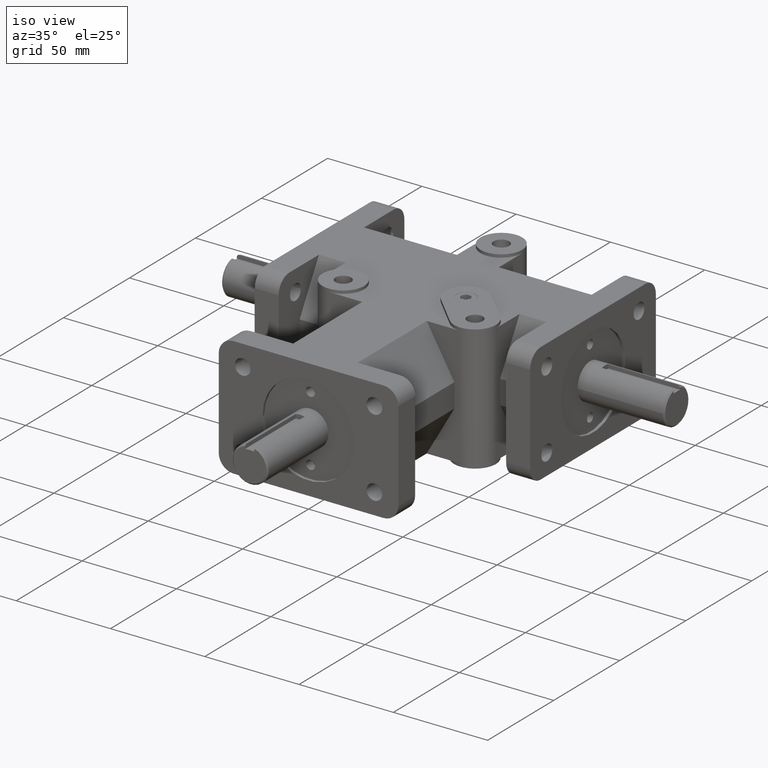
[diagram: clean part render]
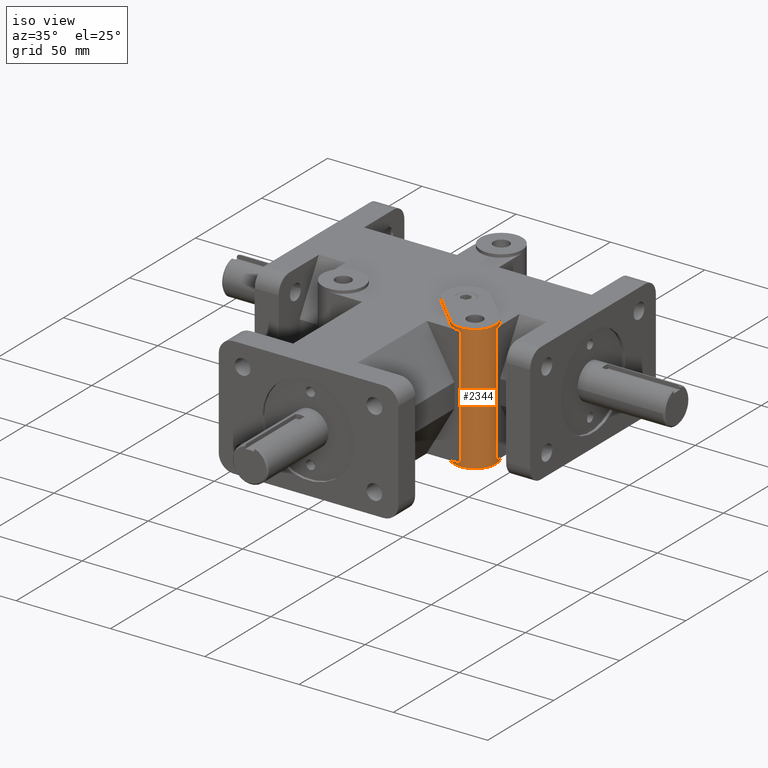
[diagram: same view with one face highlighted and labeled with its STEP entity id]
A machine part, iso view. The second image highlights one B-rep face of the part: STEP entity #2344.
In plain terms, the highlighted cylindrical surface (bore or boss wall) has radius 11.1125 mm, axis along (0, 0, -1).
Its self-contained STEP definition (entity closure, byte-faithful):
#180=LINE('',#3875,#402);
#182=LINE('',#3882,#404);
#184=LINE('',#3887,#406);
#185=LINE('',#3888,#407);
#186=LINE('',#3890,#408);
#402=VECTOR('',#3140,1.);
#404=VECTOR('',#3148,1.);
#406=VECTOR('',#3154,0.4375);
#407=VECTOR('',#3155,1.);
#408=VECTOR('',#3158,1.);
#504=CYLINDRICAL_SURFACE('',#2583,0.4375);
#632=FACE_OUTER_BOUND('',#784,.T.);
#784=EDGE_LOOP('',(#1926,#1927,#1928,#1929,#1930,#1931,#1932,#1933,#1934,
#1935,#1936,#1937));
#908=CIRCLE('',#2484,0.4375);
#909=CIRCLE('',#2485,0.4375);
#914=CIRCLE('',#2491,0.4375);
#916=CIRCLE('',#2493,0.4375);
#955=CIRCLE('',#2584,0.4375);
#956=CIRCLE('',#2585,0.4375);
#1051=VERTEX_POINT('',#3551);
#1052=VERTEX_POINT('',#3553);
#1053=VERTEX_POINT('',#3555);
#1078=VERTEX_POINT('',#3613);
#1079=VERTEX_POINT('',#3615);
#1082=VERTEX_POINT('',#3621);
#1083=VERTEX_POINT('',#3623);
#1156=VERTEX_POINT('',#3873);
#1158=VERTEX_POINT('',#3881);
#1159=VERTEX_POINT('',#3885);
#1287=EDGE_CURVE('',#1051,#1052,#908,.T.);
#1288=EDGE_CURVE('',#1052,#1053,#909,.T.);
#1321=EDGE_CURVE('',#1078,#1079,#914,.T.);
#1325=EDGE_CURVE('',#1082,#1083,#916,.T.);
#1442=EDGE_CURVE('',#1156,#1082,#180,.T.);
#1445=EDGE_CURVE('',#1158,#1079,#182,.T.);
#1447=EDGE_CURVE('',#1159,#1159,#955,.T.);
#1448=EDGE_CURVE('',#1159,#1052,#184,.T.);
#1449=EDGE_CURVE('',#1083,#1051,#185,.T.);
#1450=EDGE_CURVE('',#1156,#1158,#956,.T.);
#1451=EDGE_CURVE('',#1078,#1053,#186,.T.);
#1926=ORIENTED_EDGE('',*,*,#1447,.T.);
#1927=ORIENTED_EDGE('',*,*,#1448,.T.);
#1928=ORIENTED_EDGE('',*,*,#1287,.F.);
#1929=ORIENTED_EDGE('',*,*,#1449,.F.);
#1930=ORIENTED_EDGE('',*,*,#1325,.F.);
#1931=ORIENTED_EDGE('',*,*,#1442,.F.);
#1932=ORIENTED_EDGE('',*,*,#1450,.T.);
#1933=ORIENTED_EDGE('',*,*,#1445,.T.);
#1934=ORIENTED_EDGE('',*,*,#1321,.F.);
#1935=ORIENTED_EDGE('',*,*,#1451,.T.);
#1936=ORIENTED_EDGE('',*,*,#1288,.F.);
#1937=ORIENTED_EDGE('',*,*,#1448,.F.);
#2344=ADVANCED_FACE('',(#632),#504,.T.);
#2484=AXIS2_PLACEMENT_3D('',#3554,#2845,#2846);
#2485=AXIS2_PLACEMENT_3D('',#3556,#2847,#2848);
#2491=AXIS2_PLACEMENT_3D('',#3616,#2887,#2888);
#2493=AXIS2_PLACEMENT_3D('',#3624,#2893,#2894);
#2583=AXIS2_PLACEMENT_3D('',#3884,#3150,#3151);
#2584=AXIS2_PLACEMENT_3D('',#3886,#3152,#3153);
#2585=AXIS2_PLACEMENT_3D('',#3889,#3156,#3157);
#2845=DIRECTION('center_axis',(0.,0.,1.));
#2846=DIRECTION('ref_axis',(1.,0.,0.));
#2847=DIRECTION('center_axis',(0.,0.,1.));
#2848=DIRECTION('ref_axis',(1.,0.,0.));
#2887=DIRECTION('center_axis',(0.,0.,-1.));
#2888=DIRECTION('ref_axis',(1.,0.,0.));
#2893=DIRECTION('center_axis',(0.,0.,-1.));
#2894=DIRECTION('ref_axis',(1.,0.,0.));
#3140=DIRECTION('',(0.,0.,-1.));
#3148=DIRECTION('',(0.,0.,-1.));
#3150=DIRECTION('center_axis',(0.,0.,-1.));
#3151=DIRECTION('ref_axis',(1.,0.,0.));
#3152=DIRECTION('center_axis',(0.,0.,1.));
#3153=DIRECTION('ref_axis',(1.,0.,0.));
#3154=DIRECTION('',(0.,0.,1.));
#3155=DIRECTION('',(0.,0.,-1.));
#3156=DIRECTION('center_axis',(0.,0.,-1.));
#3157=DIRECTION('ref_axis',(1.,0.,0.));
#3158=DIRECTION('',(0.,0.,-1.));
#3551=CARTESIAN_POINT('',(1.8125,3.,-1.25));
#3553=CARTESIAN_POINT('',(0.9375,3.,-1.25));
#3554=CARTESIAN_POINT('Origin',(1.375,3.,-1.25));
#3555=CARTESIAN_POINT('',(1.375,2.5625,-1.25));
#3556=CARTESIAN_POINT('Origin',(1.375,3.,-1.25));
#3613=CARTESIAN_POINT('',(1.375,2.5625,1.25));
#3615=CARTESIAN_POINT('',(1.06564078323088,2.69064078323089,1.25));
#3616=CARTESIAN_POINT('Origin',(1.375,3.,1.25));
#3621=CARTESIAN_POINT('',(1.68435921676911,3.30935921676911,1.25));
#3623=CARTESIAN_POINT('',(1.8125,3.,1.25));
#3624=CARTESIAN_POINT('Origin',(1.375,3.,1.25));
#3873=CARTESIAN_POINT('',(1.68435921676911,3.30935921676911,1.3125));
#3875=CARTESIAN_POINT('',(1.68435921676911,3.30935921676911,0.));
#3881=CARTESIAN_POINT('',(1.06564078323088,2.69064078323089,1.3125));
#3882=CARTESIAN_POINT('',(1.06564078323089,2.69064078323089,0.));
#3884=CARTESIAN_POINT('Origin',(1.375,3.,0.));
#3885=CARTESIAN_POINT('',(0.9375,3.,-1.3125));
#3886=CARTESIAN_POINT('Origin',(1.375,3.,-1.3125));
#3887=CARTESIAN_POINT('',(0.9375,3.,0.));
#3888=CARTESIAN_POINT('',(1.8125,3.,0.));
#3889=CARTESIAN_POINT('Origin',(1.375,3.,1.3125));
#3890=CARTESIAN_POINT('',(1.375,2.5625,0.));